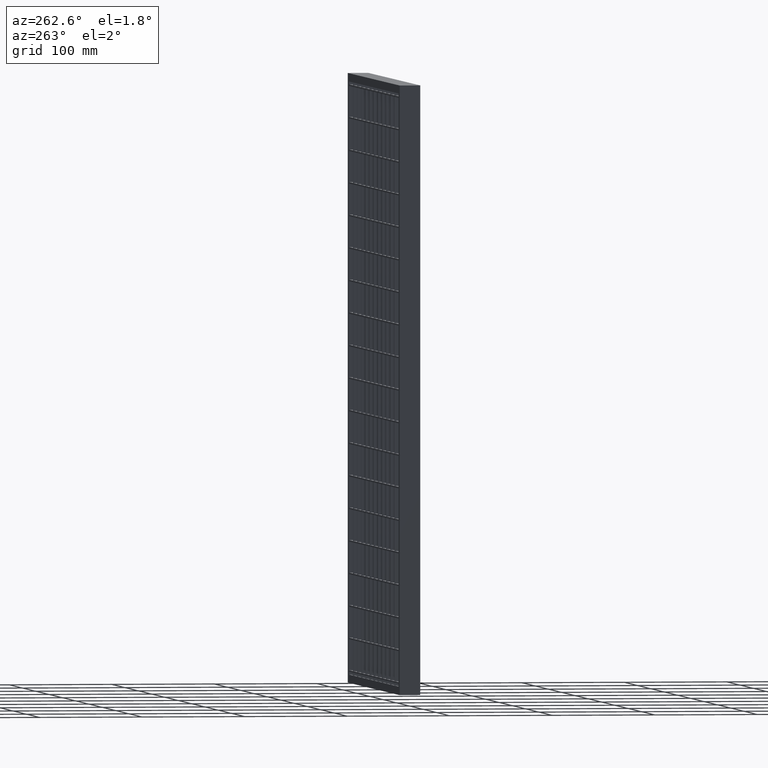
[diagram: clean part render]
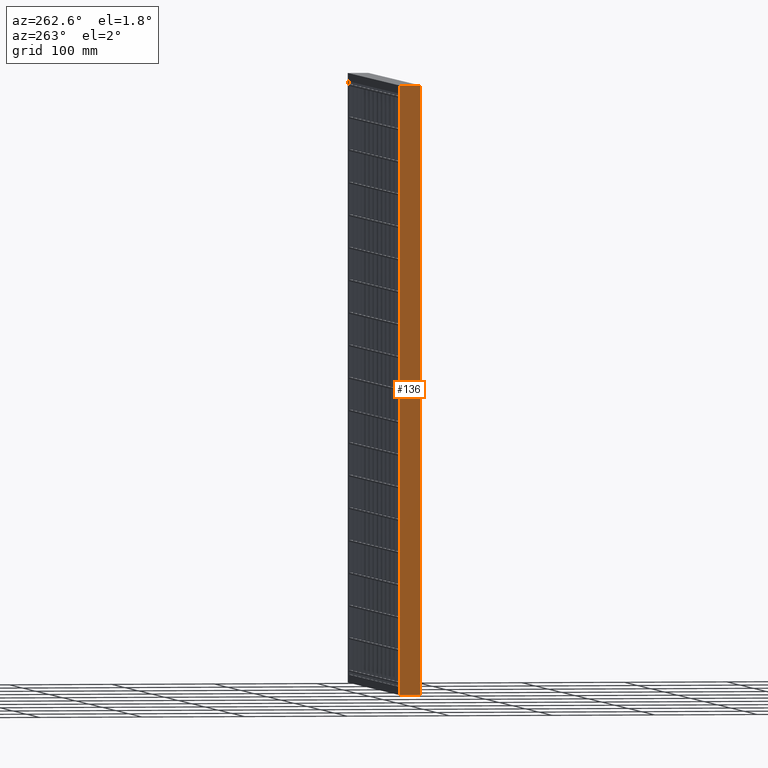
[diagram: same view with one face highlighted and labeled with its STEP entity id]
A machine part, auxiliary view. The second image highlights one B-rep face of the part: STEP entity #136.
In plain terms, the highlighted planar face has unit normal (-1, -0, 0).
Its self-contained STEP definition (entity closure, byte-faithful):
#136 = ADVANCED_FACE ( 'NONE', ( #39931 ), #32203, .T. ) ;
#482 = LINE ( 'NONE', #22951, #15979 ) ;
#872 = DIRECTION ( 'NONE',  ( -0.0000000000000000000, -0.0000000000000000000, 1.000000000000000000 ) ) ;
#1729 = LINE ( 'NONE', #37352, #14769 ) ;
#3697 = DIRECTION ( 'NONE',  ( 3.061616997868382600E-016, -1.000000000000000000, 3.061616997868382600E-016 ) ) ;
#3835 = VERTEX_POINT ( 'NONE', #20291 ) ;
#4567 = VERTEX_POINT ( 'NONE', #24087 ) ;
#8958 = EDGE_CURVE ( 'NONE', #10091, #21702, #21182, .T. ) ;
#9807 = ORIENTED_EDGE ( 'NONE', *, *, #37003, .F. ) ;
#9967 = CARTESIAN_POINT ( 'NONE',  ( 1.530808498934191500E-015, -10.00000000000000000, -1.665334536937734800E-013 ) ) ;
#10091 = VERTEX_POINT ( 'NONE', #9967 ) ;
#13418 = CARTESIAN_POINT ( 'NONE',  ( -1.110223024625157800E-013, 10.00000000000000200, 1.232687704539892700E-013 ) ) ;
#13549 = CARTESIAN_POINT ( 'NONE',  ( 1.530808498934191500E-015, -10.00000000000000000, -1.665334536937734800E-013 ) ) ;
#13798 = DIRECTION ( 'NONE',  ( -1.000000000000000000, -3.061616997868382600E-016, 0.0000000000000000000 ) ) ;
#13942 = CARTESIAN_POINT ( 'NONE',  ( -1.020538999289460800E-015, 3.333333333333333900, 0.0000000000000000000 ) ) ;
#14769 = VECTOR ( 'NONE', #15572, 1000.000000000000000 ) ;
#15434 = EDGE_CURVE ( 'NONE', #3835, #10091, #482, .T. ) ;
#15572 = DIRECTION ( 'NONE',  ( -0.0000000000000000000, -0.0000000000000000000, 1.000000000000000000 ) ) ;
#15979 = VECTOR ( 'NONE', #872, 1000.000000000000000 ) ;
#19134 = CARTESIAN_POINT ( 'NONE',  ( -3.061616997868386200E-015, 10.00000000000001400, -590.0000000000000000 ) ) ;
#20291 = CARTESIAN_POINT ( 'NONE',  ( 3.061616997868383000E-015, -10.00000000000000000, -590.0000000000000000 ) ) ;
#20369 = ORIENTED_EDGE ( 'NONE', *, *, #23382, .T. ) ;
#21182 = B_SPLINE_CURVE_WITH_KNOTS ( 'NONE', 3,
 ( #13549, #28948, #13942, #13418 ),
 .UNSPECIFIED., .F., .F.,
 ( 4, 4 ),
 ( 0.0000000000000000000, 1.000000000000000000 ),
 .UNSPECIFIED. ) ;
#21702 = VERTEX_POINT ( 'NONE', #36266 ) ;
#22951 = CARTESIAN_POINT ( 'NONE',  ( 3.061616997868383000E-015, -10.00000000000000000, -633.0813184570758900 ) ) ;
#23013 = CARTESIAN_POINT ( 'NONE',  ( -3.061616997868382300E-015, 10.00000000000000000, -633.0813184570758900 ) ) ;
#23382 = EDGE_CURVE ( 'NONE', #4567, #3835, #39721, .T. ) ;
#24087 = CARTESIAN_POINT ( 'NONE',  ( -3.061616997868381900E-015, 10.00000000000000000, -590.0000000000000000 ) ) ;
#24680 = ORIENTED_EDGE ( 'NONE', *, *, #15434, .T. ) ;
#26645 = ORIENTED_EDGE ( 'NONE', *, *, #8958, .T. ) ;
#28948 = CARTESIAN_POINT ( 'NONE',  ( 1.020538999289461100E-015, -3.333333333333332100, 0.0000000000000000000 ) ) ;
#29203 = DIRECTION ( 'NONE',  ( 3.061616997868382600E-016, -1.000000000000000000, 0.0000000000000000000 ) ) ;
#31518 = VECTOR ( 'NONE', #3697, 1000.000000000000000 ) ;
#32203 = PLANE ( 'NONE',  #35863 ) ;
#35863 = AXIS2_PLACEMENT_3D ( 'NONE', #23013, #13798, #29203 ) ;
#36266 = CARTESIAN_POINT ( 'NONE',  ( -1.110223024625157800E-013, 10.00000000000000200, 1.232687704539892700E-013 ) ) ;
#36434 = EDGE_LOOP ( 'NONE', ( #24680, #26645, #9807, #20369 ) ) ;
#37003 = EDGE_CURVE ( 'NONE', #4567, #21702, #1729, .T. ) ;
#37352 = CARTESIAN_POINT ( 'NONE',  ( -3.061616997868382300E-015, 10.00000000000000000, -633.0813184570758900 ) ) ;
#39721 = LINE ( 'NONE', #19134, #31518 ) ;
#39931 = FACE_OUTER_BOUND ( 'NONE', #36434, .T. ) ;